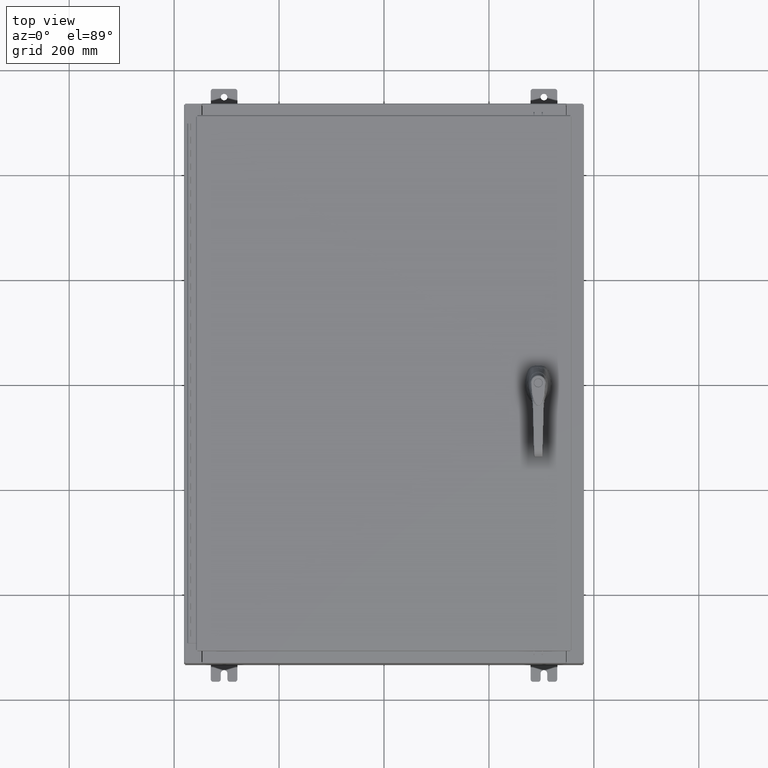
[diagram: clean part render]
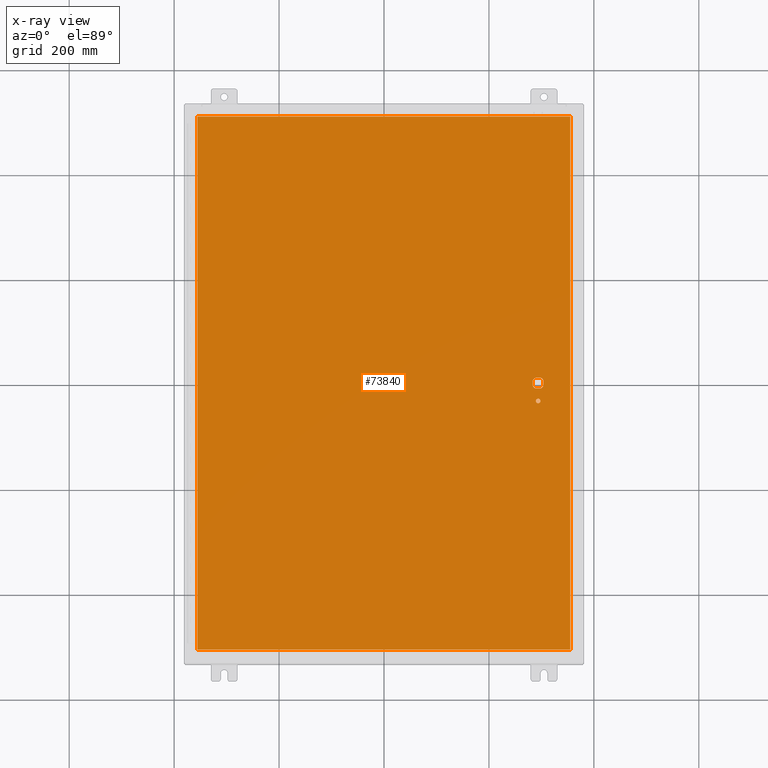
[diagram: x-ray — body ghosted, one internal face saturated and labeled with its STEP entity id]
A machine part, top view, then the same camera in x-ray: the body is ghosted and one INTERNAL B-rep face — a face not visible from any outside direction — is saturated and labeled: STEP entity #73840.
In plain terms, the highlighted planar face has unit normal (0, 0, -1).
Its self-contained STEP definition (entity closure, byte-faithful):
#1120 = EDGE_CURVE ( 'NONE', #123425, #33018, #34708, .T. ) ;
#1616 = EDGE_CURVE ( 'NONE', #56862, #107944, #29963, .T. ) ;
#2794 = VERTEX_POINT ( 'NONE', #48160 ) ;
#2849 = DIRECTION ( 'NONE',  ( -1.000000000000000000, -1.776356839400246700E-015, 0.0000000000000000000 ) ) ;
#3974 = DIRECTION ( 'NONE',  ( -0.0000000000000000000, -0.0000000000000000000, 1.000000000000000000 ) ) ;
#4682 = EDGE_CURVE ( 'NONE', #2794, #113531, #5910, .T. ) ;
#4757 = VECTOR ( 'NONE', #57340, 39.37007874015748100 ) ;
#5910 = LINE ( 'NONE', #35470, #108505 ) ;
#7457 = DIRECTION ( 'NONE',  ( -0.0000000000000000000, -0.0000000000000000000, 1.000000000000000000 ) ) ;
#8996 = VECTOR ( 'NONE', #100569, 39.37007874015748100 ) ;
#9958 = AXIS2_PLACEMENT_3D ( 'NONE', #29491, #119053, #59527 ) ;
#10930 = CARTESIAN_POINT ( 'NONE',  ( -13.99029999999999800, 20.00630000000000300, -0.07470000000000000300 ) ) ;
#11095 = ORIENTED_EDGE ( 'NONE', *, *, #64739, .T. ) ;
#12095 = LINE ( 'NONE', #121257, #68109 ) ;
#12389 = ORIENTED_EDGE ( 'NONE', *, *, #15603, .F. ) ;
#15603 = EDGE_CURVE ( 'NONE', #113531, #41147, #31150, .T. ) ;
#16045 = CARTESIAN_POINT ( 'NONE',  ( 11.40650000000000100, -1.338000000000000100, -0.07470000000000003000 ) ) ;
#16392 = ORIENTED_EDGE ( 'NONE', *, *, #43270, .T. ) ;
#17351 = CARTESIAN_POINT ( 'NONE',  ( 13.99030000000000100, 20.00630000000000700, -0.07469999999999804600 ) ) ;
#18398 = EDGE_CURVE ( 'NONE', #103955, #76520, #91508, .T. ) ;
#18724 = CIRCLE ( 'NONE', #69033, 0.4499999999999168000 ) ;
#18871 = LINE ( 'NONE', #59473, #45299 ) ;
#20054 = ORIENTED_EDGE ( 'NONE', *, *, #53590, .T. ) ;
#20978 = CIRCLE ( 'NONE', #122709, 0.1715000000000011500 ) ;
#24467 = FACE_BOUND ( 'NONE', #107689, .T. ) ;
#24575 = CARTESIAN_POINT ( 'NONE',  ( 11.17500000000007500, -0.2002273707563079800, -0.07470000000000003000 ) ) ;
#26810 = CARTESIAN_POINT ( 'NONE',  ( 11.17500000000007500, 0.0000000000000000000, -0.07470000000000003000 ) ) ;
#27636 = CARTESIAN_POINT ( 'NONE',  ( 11.98099999999992900, 0.2002273707563075900, -0.07470000000000003000 ) ) ;
#28643 = CARTESIAN_POINT ( 'NONE',  ( 11.37777262924369200, -0.4029999999999250300, -0.07470000000000003000 ) ) ;
#29103 = CARTESIAN_POINT ( 'NONE',  ( 11.74950000000000300, -1.338000000000000100, -0.07470000000000003000 ) ) ;
#29491 = CARTESIAN_POINT ( 'NONE',  ( 0.0000000000000000000, 0.0000000000000000000, -0.07470000000000000300 ) ) ;
#29856 = CARTESIAN_POINT ( 'NONE',  ( 11.57800000000000100, 0.0000000000000000000, -0.07470000000000003000 ) ) ;
#29963 = LINE ( 'NONE', #26810, #103037 ) ;
#31150 = LINE ( 'NONE', #17351, #4757 ) ;
#32288 = CIRCLE ( 'NONE', #114126, 0.4499999999999168000 ) ;
#32917 = DIRECTION ( 'NONE',  ( -1.000000000000000000, 0.0000000000000000000, 0.0000000000000000000 ) ) ;
#33018 = VERTEX_POINT ( 'NONE', #48316 ) ;
#34708 = CIRCLE ( 'NONE', #123408, 0.4499999999999168000 ) ;
#35470 = CARTESIAN_POINT ( 'NONE',  ( 13.99030000000000100, -20.00630000000000300, -0.07470000000000019700 ) ) ;
#37600 = CARTESIAN_POINT ( 'NONE',  ( 11.98099999999992900, 6.538620706741755000E-014, -0.07470000000000003000 ) ) ;
#37752 = VERTEX_POINT ( 'NONE', #61081 ) ;
#39555 = CARTESIAN_POINT ( 'NONE',  ( 11.77822737075631200, -0.4029999999999252000, -0.07470000000000003000 ) ) ;
#39844 = DIRECTION ( 'NONE',  ( -1.000000000000000000, -1.776356839400246700E-015, 0.0000000000000000000 ) ) ;
#41147 = VERTEX_POINT ( 'NONE', #10930 ) ;
#42220 = VECTOR ( 'NONE', #107142, 39.37007874015748100 ) ;
#43051 = CARTESIAN_POINT ( 'NONE',  ( 11.37777262924369200, 0.4029999999999252000, -0.07470000000000003000 ) ) ;
#43270 = EDGE_CURVE ( 'NONE', #98447, #47626, #20978, .T. ) ;
#45299 = VECTOR ( 'NONE', #69466, 39.37007874015748100 ) ;
#47626 = VERTEX_POINT ( 'NONE', #16045 ) ;
#47792 = FACE_BOUND ( 'NONE', #103936, .T. ) ;
#48160 = CARTESIAN_POINT ( 'NONE',  ( 13.99030000000000100, -20.00630000000000700, -0.07470000000000000300 ) ) ;
#48316 = CARTESIAN_POINT ( 'NONE',  ( 11.77822737075631200, 0.4029999999999250300, -0.07470000000000003000 ) ) ;
#48800 = ORIENTED_EDGE ( 'NONE', *, *, #88160, .F. ) ;
#50989 = EDGE_CURVE ( 'NONE', #76520, #37752, #18724, .T. ) ;
#51746 = DIRECTION ( 'NONE',  ( 0.0000000000000000000, -1.000000000000000000, 0.0000000000000000000 ) ) ;
#52631 = ORIENTED_EDGE ( 'NONE', *, *, #70335, .T. ) ;
#53590 = EDGE_CURVE ( 'NONE', #105785, #56862, #32288, .T. ) ;
#54071 = FACE_OUTER_BOUND ( 'NONE', #96538, .T. ) ;
#56658 = DIRECTION ( 'NONE',  ( -0.0000000000000000000, -0.0000000000000000000, 1.000000000000000000 ) ) ;
#56862 = VERTEX_POINT ( 'NONE', #98017 ) ;
#57340 = DIRECTION ( 'NONE',  ( -1.000000000000000000, -0.0000000000000000000, -0.0000000000000000000 ) ) ;
#59473 = CARTESIAN_POINT ( 'NONE',  ( -13.99029999999999800, -20.00630000000001000, -0.07469999999999804600 ) ) ;
#59527 = DIRECTION ( 'NONE',  ( -1.000000000000000000, 0.0000000000000000000, -0.0000000000000000000 ) ) ;
#61081 = CARTESIAN_POINT ( 'NONE',  ( 11.98099999999992900, -0.2002273707563067300, -0.07470000000000003000 ) ) ;
#61777 = VECTOR ( 'NONE', #32917, 39.37007874015748100 ) ;
#62414 = DIRECTION ( 'NONE',  ( -0.0000000000000000000, -0.0000000000000000000, 1.000000000000000000 ) ) ;
#63538 = CARTESIAN_POINT ( 'NONE',  ( 11.57800000000000100, -1.338000000000000100, -0.07470000000000003000 ) ) ;
#64739 = EDGE_CURVE ( 'NONE', #47626, #98447, #66967, .T. ) ;
#66126 = CIRCLE ( 'NONE', #78935, 0.4499999999999168000 ) ;
#66967 = CIRCLE ( 'NONE', #113527, 0.1715000000000011500 ) ;
#67004 = CARTESIAN_POINT ( 'NONE',  ( 11.57800000000000100, 0.0000000000000000000, -0.07470000000000003000 ) ) ;
#67505 = EDGE_CURVE ( 'NONE', #41147, #109930, #12095, .T. ) ;
#68109 = VECTOR ( 'NONE', #51746, 39.37007874015748100 ) ;
#69033 = AXIS2_PLACEMENT_3D ( 'NONE', #121936, #62414, #2849 ) ;
#69466 = DIRECTION ( 'NONE',  ( 1.000000000000000000, -0.0000000000000000000, -0.0000000000000000000 ) ) ;
#69841 = DIRECTION ( 'NONE',  ( -1.000000000000000000, -5.329070518200740300E-015, 0.0000000000000000000 ) ) ;
#70335 = EDGE_CURVE ( 'NONE', #107944, #103955, #66126, .T. ) ;
#70890 = CARTESIAN_POINT ( 'NONE',  ( 13.99030000000000100, 20.00630000000000300, -0.07470000000000000300 ) ) ;
#73466 = ORIENTED_EDGE ( 'NONE', *, *, #4682, .F. ) ;
#73565 = DIRECTION ( 'NONE',  ( -1.000000000000000000, 0.0000000000000000000, 0.0000000000000000000 ) ) ;
#73840 = ADVANCED_FACE ( 'NONE', ( #24467, #54071, #47792 ), #108587, .T. ) ;
#73987 = EDGE_CURVE ( 'NONE', #33018, #105785, #88220, .T. ) ;
#75238 = ORIENTED_EDGE ( 'NONE', *, *, #67505, .F. ) ;
#76047 = ORIENTED_EDGE ( 'NONE', *, *, #1120, .T. ) ;
#76520 = VERTEX_POINT ( 'NONE', #39555 ) ;
#77040 = DIRECTION ( 'NONE',  ( -1.000000000000000000, -5.329070518200740300E-015, 0.0000000000000000000 ) ) ;
#78935 = AXIS2_PLACEMENT_3D ( 'NONE', #29856, #99440, #39844 ) ;
#80092 = EDGE_CURVE ( 'NONE', #109930, #2794, #18871, .T. ) ;
#80902 = ORIENTED_EDGE ( 'NONE', *, *, #18398, .T. ) ;
#82452 = CARTESIAN_POINT ( 'NONE',  ( 11.57800000000000100, 0.0000000000000000000, -0.07470000000000003000 ) ) ;
#84158 = ORIENTED_EDGE ( 'NONE', *, *, #73987, .T. ) ;
#85921 = DIRECTION ( 'NONE',  ( 0.0000000000000000000, -1.000000000000000000, 0.0000000000000000000 ) ) ;
#88160 = EDGE_CURVE ( 'NONE', #123425, #37752, #124646, .T. ) ;
#88220 = LINE ( 'NONE', #92559, #61777 ) ;
#89707 = ORIENTED_EDGE ( 'NONE', *, *, #50989, .T. ) ;
#90630 = CARTESIAN_POINT ( 'NONE',  ( 0.0000000000000000000, -0.4029999999999252000, -0.07470000000000003000 ) ) ;
#91508 = LINE ( 'NONE', #90630, #8996 ) ;
#92559 = CARTESIAN_POINT ( 'NONE',  ( 0.0000000000000000000, 0.4029999999999252000, -0.07470000000000003000 ) ) ;
#92804 = DIRECTION ( 'NONE',  ( 0.0000000000000000000, 1.000000000000000000, 0.0000000000000000000 ) ) ;
#96538 = EDGE_LOOP ( 'NONE', ( #73466, #110385, #75238, #12389 ) ) ;
#97331 = ORIENTED_EDGE ( 'NONE', *, *, #1616, .T. ) ;
#98017 = CARTESIAN_POINT ( 'NONE',  ( 11.17500000000007500, 0.2002273707563075900, -0.07470000000000003000 ) ) ;
#98447 = VERTEX_POINT ( 'NONE', #29103 ) ;
#99440 = DIRECTION ( 'NONE',  ( -0.0000000000000000000, -0.0000000000000000000, 1.000000000000000000 ) ) ;
#100569 = DIRECTION ( 'NONE',  ( 1.000000000000000000, 0.0000000000000000000, 0.0000000000000000000 ) ) ;
#102925 = DIRECTION ( 'NONE',  ( -0.0000000000000000000, -0.0000000000000000000, 1.000000000000000000 ) ) ;
#103037 = VECTOR ( 'NONE', #85921, 39.37007874015748100 ) ;
#103936 = EDGE_LOOP ( 'NONE', ( #89707, #48800, #76047, #84158, #20054, #97331, #52631, #80902 ) ) ;
#103955 = VERTEX_POINT ( 'NONE', #28643 ) ;
#105130 = CARTESIAN_POINT ( 'NONE',  ( -13.99029999999999800, -20.00630000000000700, -0.07470000000000000300 ) ) ;
#105785 = VERTEX_POINT ( 'NONE', #43051 ) ;
#107142 = DIRECTION ( 'NONE',  ( 5.457491617345625000E-015, -1.000000000000000000, 0.0000000000000000000 ) ) ;
#107689 = EDGE_LOOP ( 'NONE', ( #16392, #11095 ) ) ;
#107944 = VERTEX_POINT ( 'NONE', #24575 ) ;
#108505 = VECTOR ( 'NONE', #92804, 39.37007874015748100 ) ;
#108587 = PLANE ( 'NONE',  #9958 ) ;
#109930 = VERTEX_POINT ( 'NONE', #105130 ) ;
#110385 = ORIENTED_EDGE ( 'NONE', *, *, #80092, .F. ) ;
#113527 = AXIS2_PLACEMENT_3D ( 'NONE', #63538, #3974, #73565 ) ;
#113531 = VERTEX_POINT ( 'NONE', #70890 ) ;
#114126 = AXIS2_PLACEMENT_3D ( 'NONE', #67004, #7457, #77040 ) ;
#116159 = CARTESIAN_POINT ( 'NONE',  ( 11.57800000000000100, -1.338000000000000100, -0.07470000000000003000 ) ) ;
#119053 = DIRECTION ( 'NONE',  ( 0.0000000000000000000, 0.0000000000000000000, -1.000000000000000000 ) ) ;
#121257 = CARTESIAN_POINT ( 'NONE',  ( -13.99029999999999800, 20.00630000000000300, -0.07470000000000019700 ) ) ;
#121936 = CARTESIAN_POINT ( 'NONE',  ( 11.57800000000000100, 0.0000000000000000000, -0.07470000000000003000 ) ) ;
#122709 = AXIS2_PLACEMENT_3D ( 'NONE', #116159, #56658, #126106 ) ;
#123408 = AXIS2_PLACEMENT_3D ( 'NONE', #82452, #102925, #69841 ) ;
#123425 = VERTEX_POINT ( 'NONE', #27636 ) ;
#124646 = LINE ( 'NONE', #37600, #42220 ) ;
#126106 = DIRECTION ( 'NONE',  ( -1.000000000000000000, 0.0000000000000000000, 0.0000000000000000000 ) ) ;